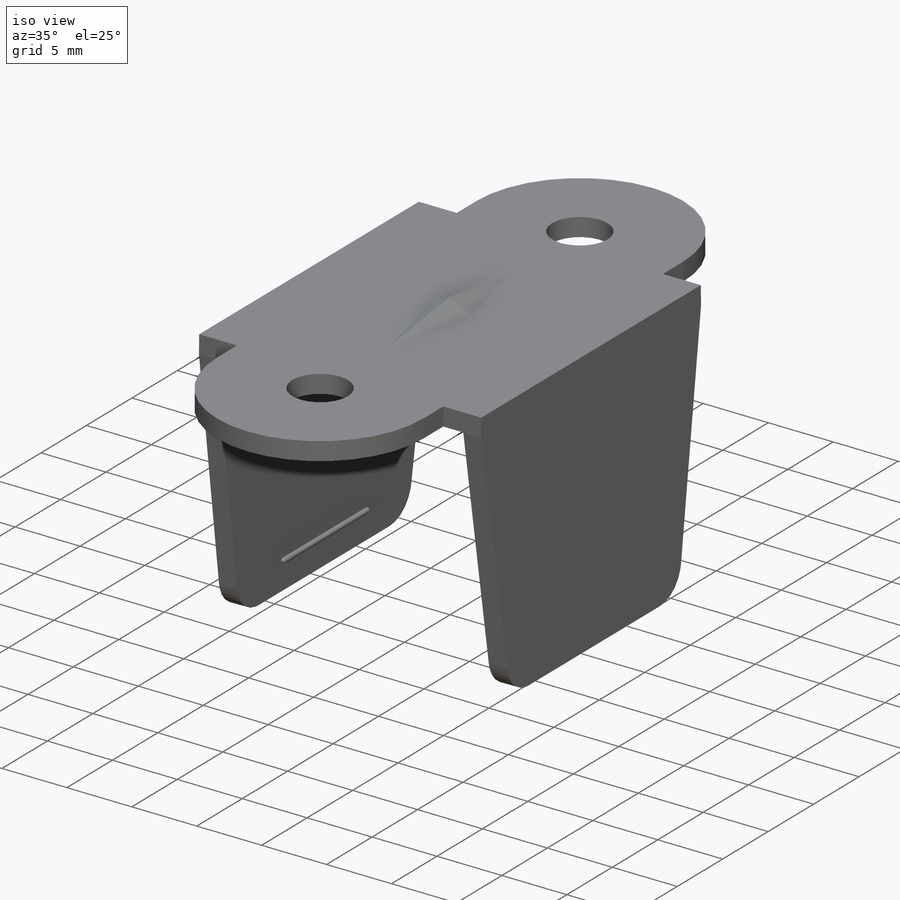
[diagram: iso view]
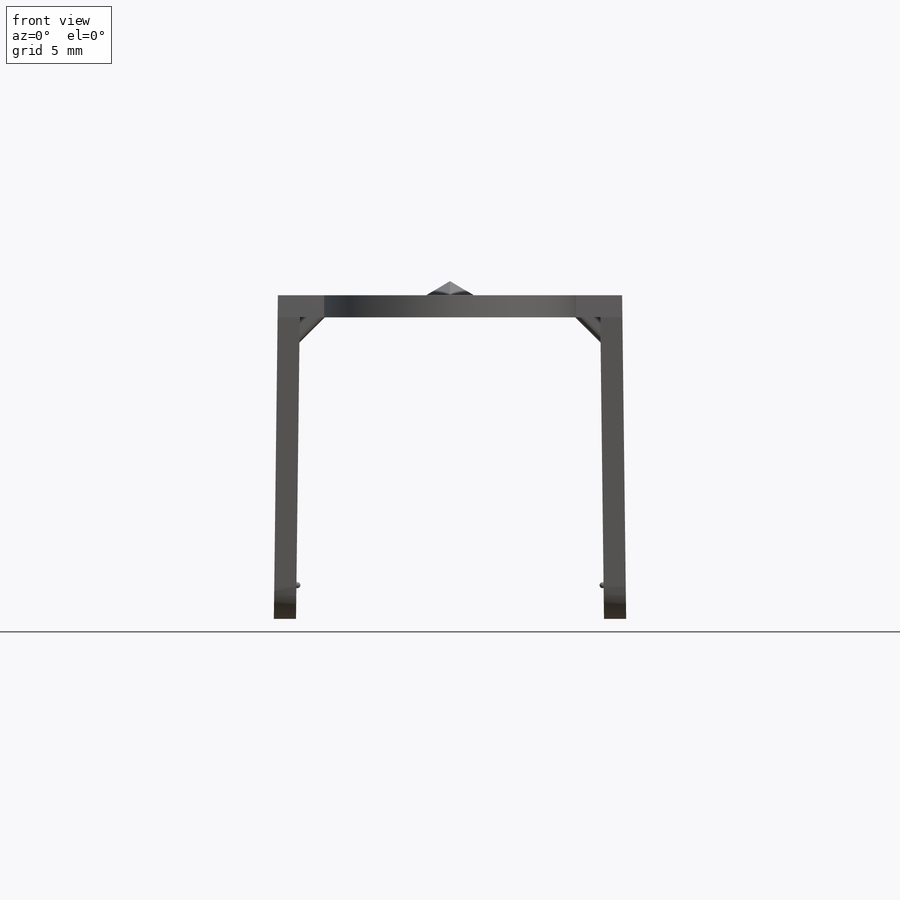
[diagram: front view]
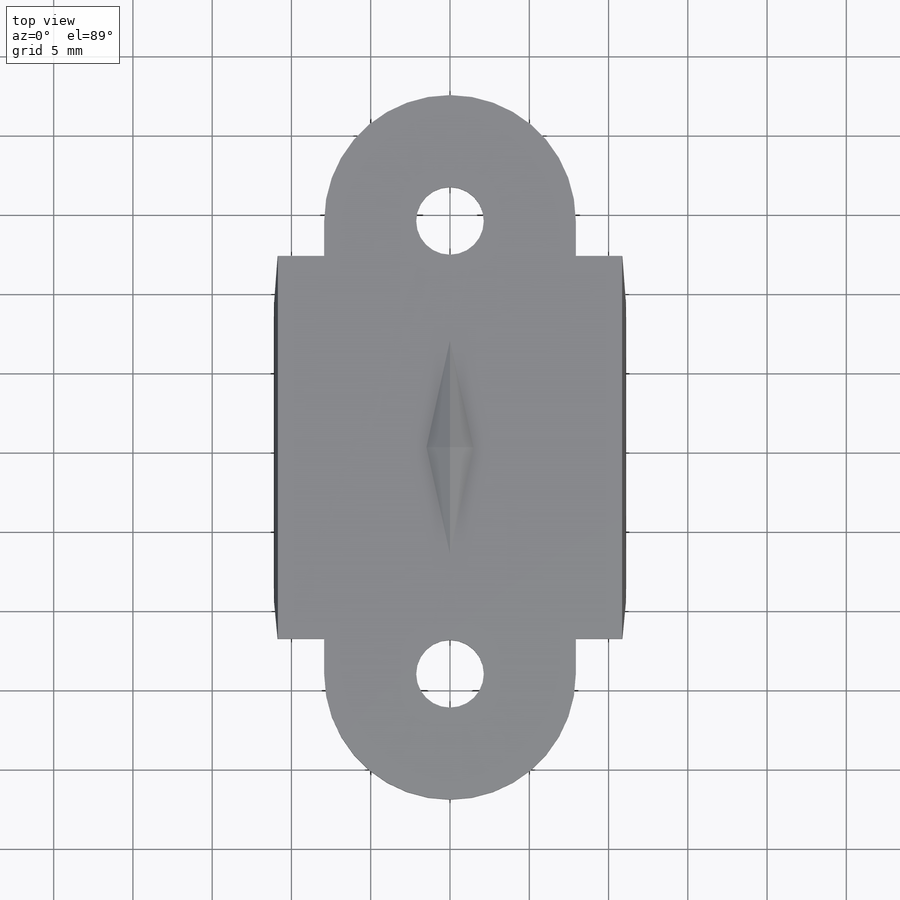
[diagram: top view]
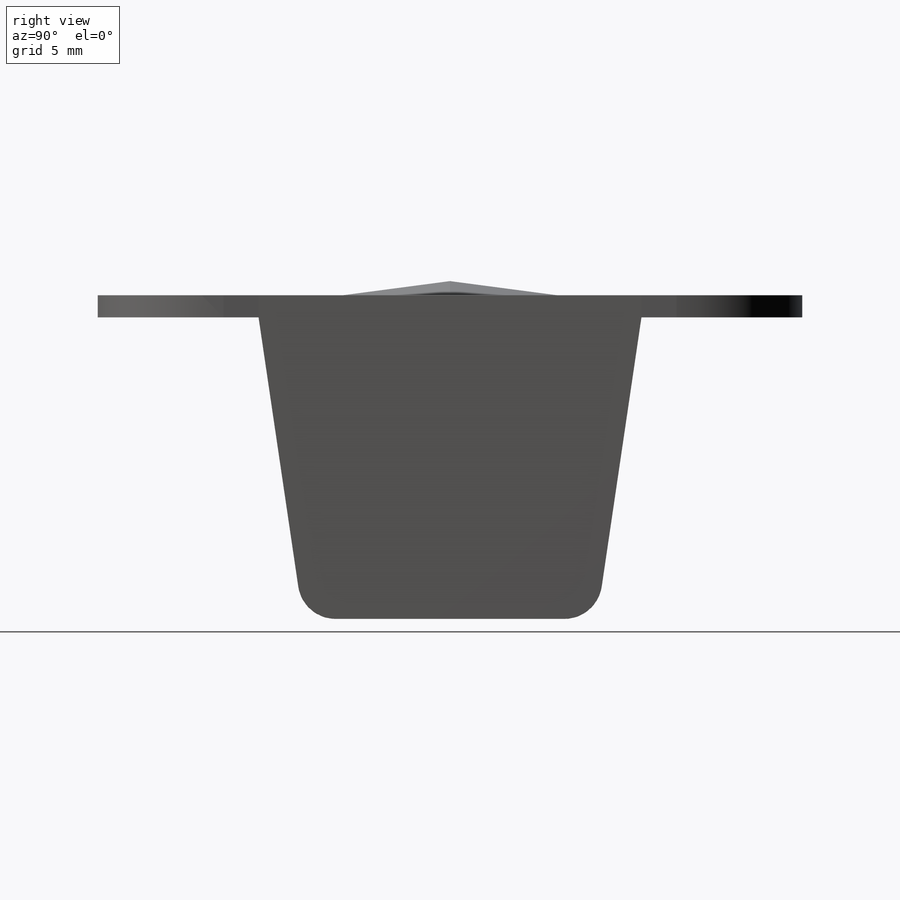
[diagram: right view]
SOLIDWORKS PART (.sldprt)
format: sldprt  version: not decoded by parser v0  size: 325,120 bytes
history: native  units: mm
features: sketch x8, extrude x5, mirror x5, fillet x4, plane x2, material x1, cut_extrude x1 (+12 scaffold rows collapsed)
feature tree (38):
  scaffold x12  (default folders/planes/origin — collapsed)
  material  "Material <not specified>"
  sketch  "Sketch1"  dims[D2=15.875mm D3=4.2672mm D1=28.575mm]
  extrude  "Boss-Extrude1"  Depth=1.397mm
  sketch  "Sketch2"  dims[D1=2.921mm D2=24.1554mm]
  extrude  "Boss-Extrude2"  Depth=1.397mm
  sketch  "Sketch3"  dims[D2=22.225mm D3=20.4216mm D1=1.397mm]
  extrude  "Boss-Extrude3"  [1 undecoded]
  sketch  "Sketch4"  dims[D1=18.542mm]
  cut_extrude  "Cut-Extrude1"  [1 undecoded]
  fillet  "Fillet1"  Radius=2.38125mm
  mirror  "Mirror2"
  fillet  "Fillet2"  Radius=2.38125mm
  plane  "Plane1"  Offset=7.53999mm
  sketch  "Sketch5"  dims[c1.D1=1.5875mm c1.D2=1.5875mm c2.D1=~0.79375mm c2.D3=1.0deg]
  fillet  "Fillet3"  Radius=0.381mm
  mirror  "Mirror3"
  mirror  "Mirror4"
  sketch  "Sketch6"  dims[D1=0.889mm D2=6.731mm]
  plane  "Plane2"
  sketch  "Sketch7"  dims[c1.D1=0.889mm c1.D2=2.9972mm c2.D1=2.9972mm c2.D2=0.889mm]
  extrude  "Boss-Extrude5"  [1 undecoded]
  mirror  "Mirror6"
  sketch  "Sketch9"  dims[D1=0.381mm D2=9.525mm]
  extrude  "Boss-Extrude6"  Depth=0.254mm
  fillet  "Fillet4"  Radius=0.1905mm
  mirror  "Mirror7"
decode coverage: 15 of 23 modeling features carry decoded parameters
note: ~ marks probable driven/reference dimensions
note: 3 parameter values undecoded
summary: no parameter record found for 3 features
note: suppression state not decoded; provenance and decode notes live in map.json
